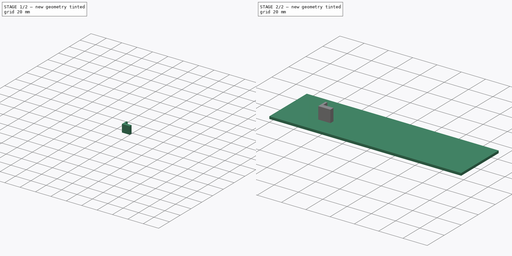
[diagram: build sequence overview — one tinted view per stage of 2, left to right]
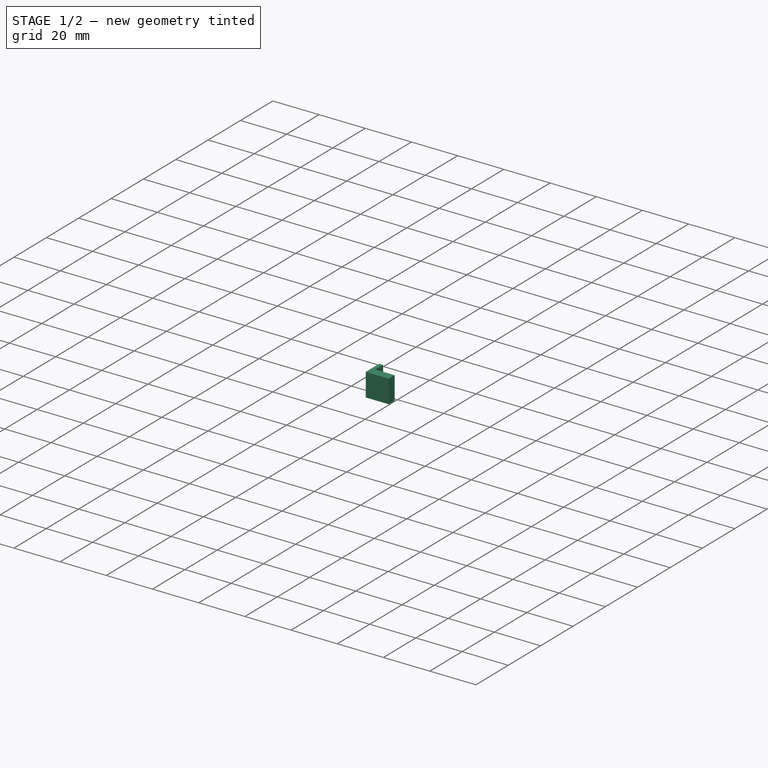
[diagram: stage 1 of 2 — iso view after this stage's code; geometry added in this stage tinted green]
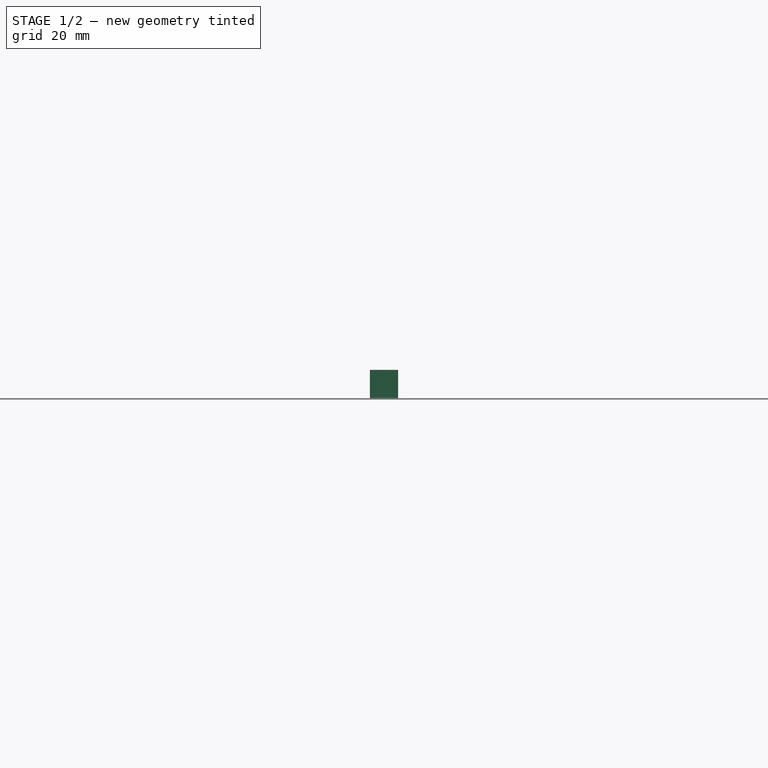
[diagram: stage 1 of 2 — front view after this stage's code; geometry added in this stage tinted green]
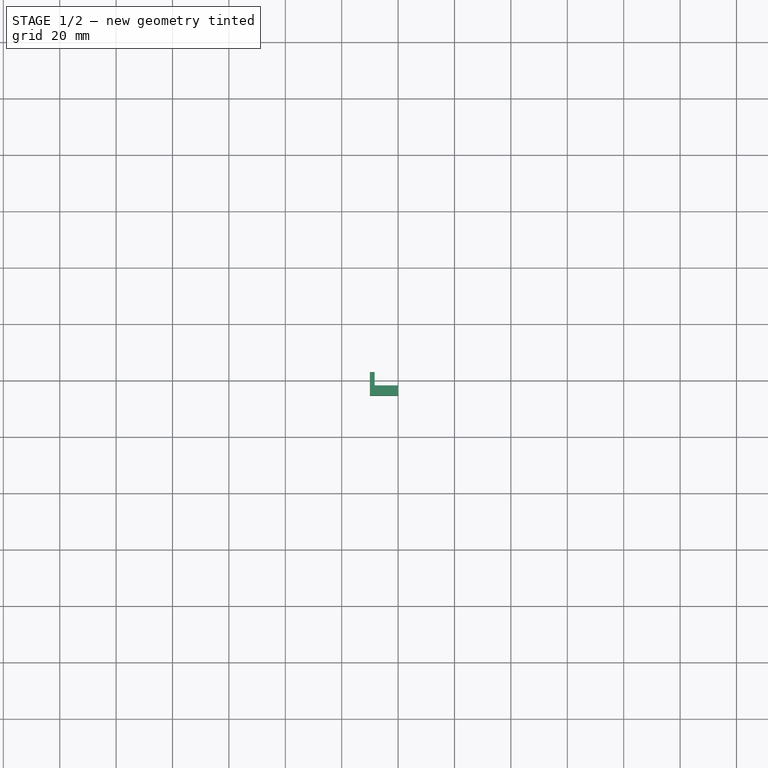
[diagram: stage 1 of 2 — top view after this stage's code; geometry added in this stage tinted green]
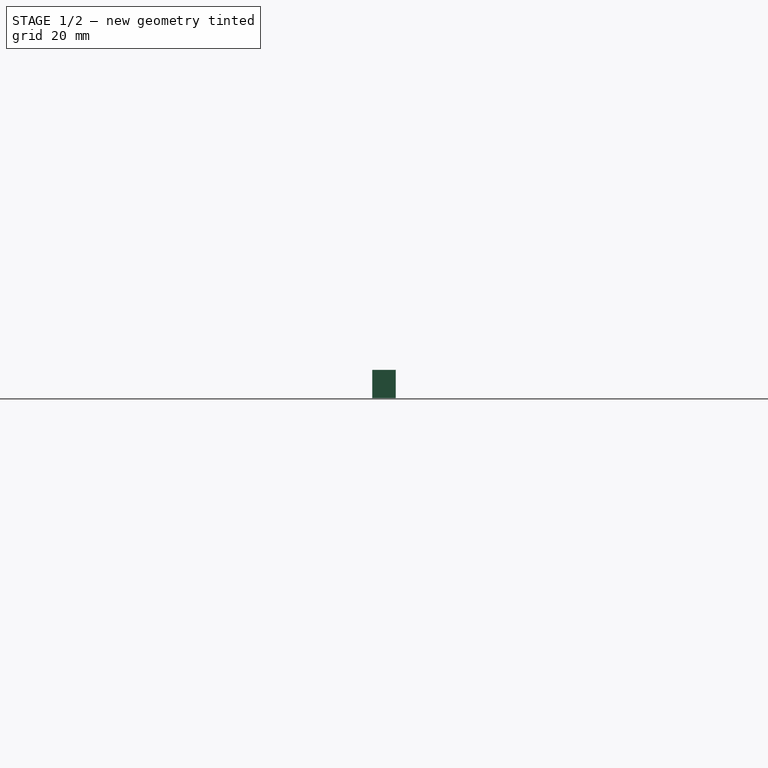
[diagram: stage 1 of 2 — right view after this stage's code; geometry added in this stage tinted green]
FCSTD DOCUMENT  (FreeCAD 0.21R33771 (Git))
Label: design attempt 1
License: All rights reserved
LicenseURL: https://en.wikipedia.org/wiki/All_rights_reserved
objects: Sketcher::SketchObject×4, Part::Extrusion×2, PartDesign::Pad×1, PartDesign::Body×1
note: 9 computed .brp shape members not serialized (recipe doc carries the construction recipe); baked Part::Feature solids carry a one-line shape summary decoded from their .brp

FEATURE [Sketcher::SketchObject] Sketch005
  FullyConstrained = false
  MapMode = 5
  Support = -> [XY_Plane]
  sketch-geometry (4):
    g0: LineSegment StartX=30 StartY=18.2585 StartZ=0 EndX=40 EndY=18.2585 EndZ=0
    g1: LineSegment StartX=40 StartY=18.2585 StartZ=0 EndX=40 EndY=14.6585 EndZ=0
    g2: LineSegment StartX=40 StartY=14.6585 StartZ=0 EndX=30 EndY=14.6585 EndZ=0
    g3: LineSegment StartX=30 StartY=14.6585 StartZ=0 EndX=30 EndY=18.2585 EndZ=0
  constraints (9):
    c: Coincident(g0,g1)
    c: Coincident(g1,g2)
    c: Coincident(g2,g3)
    c: Coincident(g3,g0)
    c: Horizontal(g0)
    c: Horizontal(g2)
    c: Vertical(g1)
    c: Vertical(g3)
    c: DistanceY(g1,g1) = 3.6
FEATURE [Sketcher::SketchObject] Sketch006
  FullyConstrained = false
  MapMode = 5
  Support = -> [XY_Plane]
  sketch-geometry (4):
    g0: LineSegment StartX=29.9958 StartY=23.0042 StartZ=0 EndX=31.6758 EndY=23.0042 EndZ=0
    g1: LineSegment StartX=31.6758 StartY=23.0042 StartZ=0 EndX=31.6758 EndY=18.2642 EndZ=0
    g2: LineSegment StartX=31.6758 StartY=18.2642 StartZ=0 EndX=29.9958 EndY=18.2642 EndZ=0
    g3: LineSegment StartX=29.9958 StartY=18.2642 StartZ=0 EndX=29.9958 EndY=23.0042 EndZ=0
  constraints (10):
    c: Coincident(g0,g1)
    c: Coincident(g1,g2)
    c: Coincident(g2,g3)
    c: Coincident(g3,g0)
    c: Horizontal(g0)
    c: Horizontal(g2)
    c: Vertical(g1)
    c: Vertical(g3)
    c: DistanceY(g1,g1) = 4.74
    c: DistanceX(g0,g0) = 1.68
FEATURE [PartDesign::Body] Body
  Group = -> [Sketch,Sketch004,Pad,Sketch005,Sketch006]
  Origin = -> Origin
  Tip = -> Pad
FEATURE [Part::Extrusion] Extrude
  Base = -> Sketch005
  Dir = (0,0,1)
  DirMode = 2
  FaceMakerClass = Part::FaceMakerBullseye
  LengthFwd = 10
  LengthRev = 0
  Solid = true
  Symmetric = false
FEATURE [Part::Extrusion] Extrude001
  Base = -> Sketch006
  Dir = (0,0,1)
  DirMode = 2
  FaceMakerClass = Part::FaceMakerBullseye
  LengthFwd = 10
  LengthRev = 0
  Solid = true
  Symmetric = false
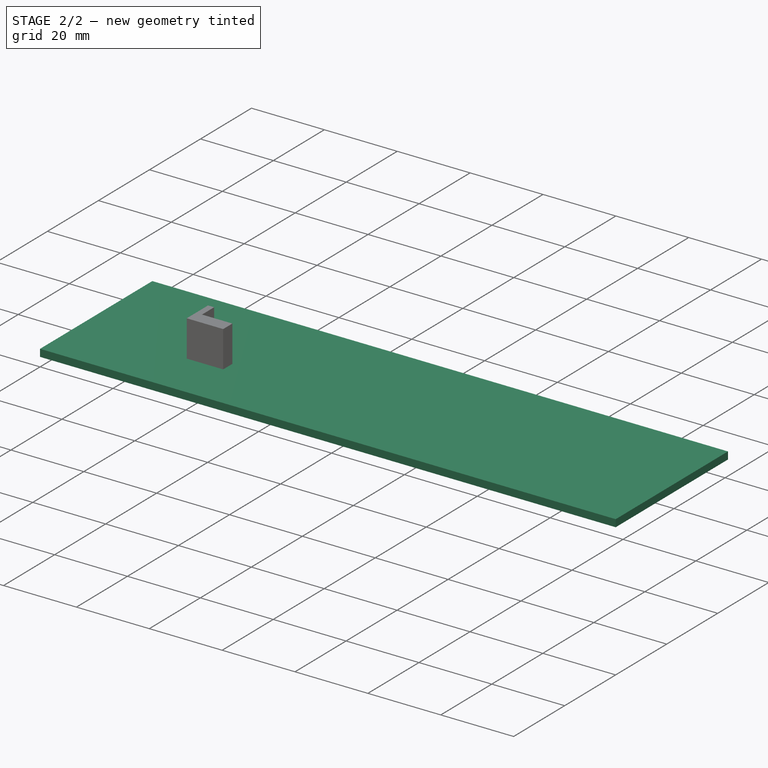
[diagram: stage 2 of 2 — iso view after this stage's code; geometry added in this stage tinted green]
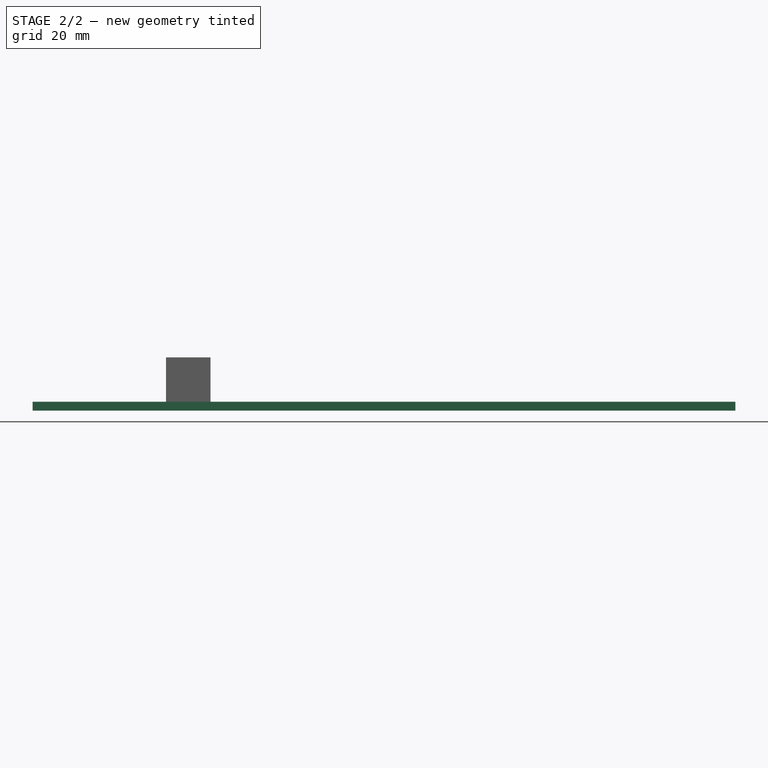
[diagram: stage 2 of 2 — front view after this stage's code; geometry added in this stage tinted green]
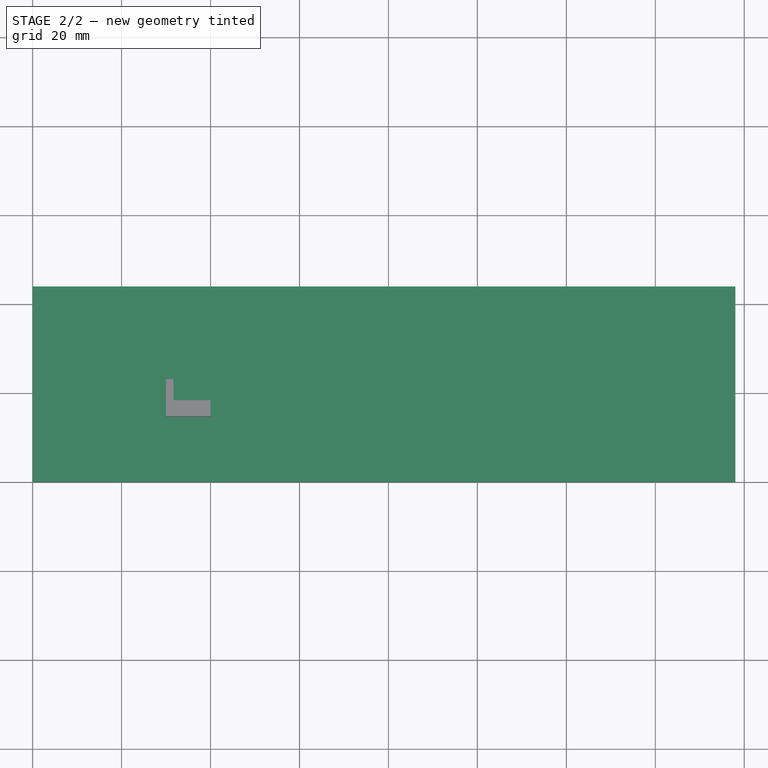
[diagram: stage 2 of 2 — top view after this stage's code; geometry added in this stage tinted green]
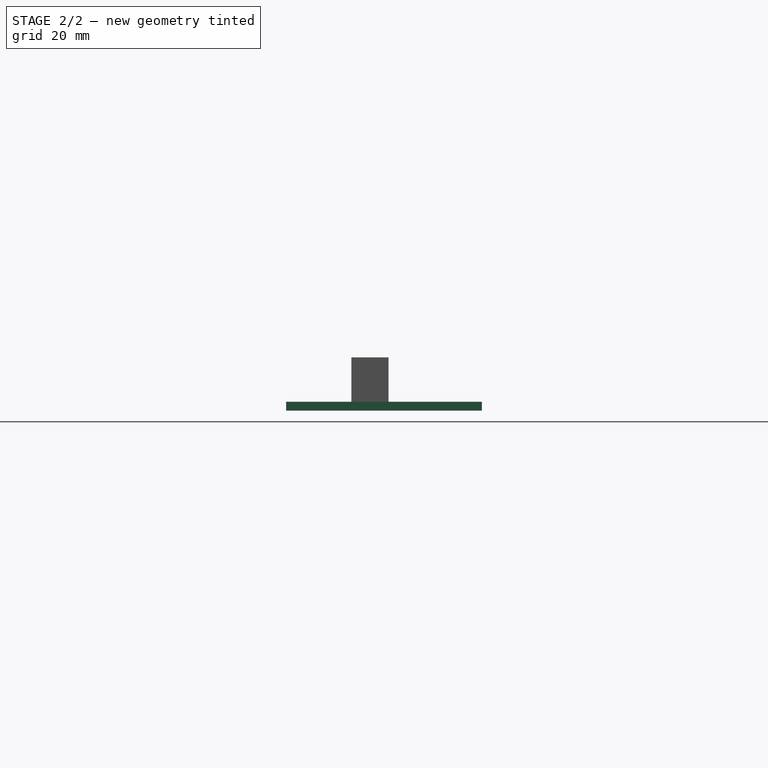
[diagram: stage 2 of 2 — right view after this stage's code; geometry added in this stage tinted green]
FEATURE [Sketcher::SketchObject] Sketch
  FullyConstrained = false
  MapMode = 5
  Support = -> [XY_Plane]
  sketch-geometry (116):
    g0: LineSegment StartX=0 StartY=44 StartZ=0 EndX=20 EndY=44 EndZ=0
    g1: LineSegment StartX=20 StartY=44 StartZ=0 EndX=20 EndY=42 EndZ=0
    g2: LineSegment StartX=20 StartY=42 StartZ=0 EndX=0 EndY=42 EndZ=0
    g3: LineSegment StartX=0 StartY=42 StartZ=0 EndX=0 EndY=44 EndZ=0
    g4: LineSegment StartX=158 StartY=0 StartZ=0 EndX=138 EndY=0 EndZ=0
    g5: LineSegment StartX=138 StartY=0 StartZ=0 EndX=138 EndY=2 EndZ=0
    g6: LineSegment StartX=138 StartY=2 StartZ=0 EndX=158 EndY=2 EndZ=0
    g7: LineSegment StartX=158 StartY=2 StartZ=0 EndX=158 EndY=0 EndZ=0
    g8: LineSegment StartX=158 StartY=44 StartZ=0 EndX=138 EndY=44 EndZ=0
    g9: LineSegment StartX=138 StartY=44 StartZ=0 EndX=138 EndY=42 EndZ=0
    g10: LineSegment StartX=138 StartY=42 StartZ=0 EndX=158 EndY=42 EndZ=0
    g11: LineSegment StartX=158 StartY=42 StartZ=0 EndX=158 EndY=44 EndZ=0
    g12: LineSegment StartX=1 StartY=2 StartZ=0 EndX=1 EndY=6.3 EndZ=0
    g13: LineSegment StartX=1 StartY=6.3 StartZ=0 EndX=2 EndY=6.3 EndZ=0
    g14: LineSegment StartX=2 StartY=6.3 StartZ=0 EndX=2 EndY=2 EndZ=0
    g15: LineSegment StartX=20 StartY=23.0023 StartZ=0 EndX=0 EndY=23.0023 EndZ=0
    g16: LineSegment StartX=0 StartY=23.0023 StartZ=0 EndX=0 EndY=21.0023 EndZ=0
    g17: LineSegment StartX=0 StartY=21.0023 StartZ=0 EndX=20 EndY=21.0023 EndZ=0
    g18: LineSegment StartX=20 StartY=21.0023 StartZ=0 EndX=20 EndY=23.0023 EndZ=0
    g19: LineSegment StartX=2 StartY=21 StartZ=0 EndX=1 EndY=21 EndZ=0
    g20: LineSegment StartX=1 StartY=21 StartZ=0 EndX=1 EndY=16.7 EndZ=0
    g21: LineSegment StartX=1 StartY=16.7 StartZ=0 EndX=2 EndY=16.7 EndZ=0
    g22: LineSegment StartX=2 StartY=16.7 StartZ=0 EndX=2 EndY=21 EndZ=0
    g23: LineSegment StartX=75.5 StartY=2 StartZ=0 EndX=76.5 EndY=2 EndZ=0
    g24: LineSegment StartX=76.5 StartY=2 StartZ=0 EndX=76.5 EndY=6.3 EndZ=0
    g25: LineSegment StartX=76.5 StartY=6.3 StartZ=0 EndX=75.5 EndY=6.3 EndZ=0
    g26: LineSegment StartX=75.5 StartY=6.3 StartZ=0 EndX=75.5 EndY=2 EndZ=0
    g27: LineSegment StartX=77.4989 StartY=0 StartZ=0 EndX=79.4989 EndY=0 EndZ=0
    g28: LineSegment StartX=79.4989 StartY=0 StartZ=0 EndX=79.4989 EndY=44 EndZ=0
    g29: LineSegment StartX=79.4989 StartY=44 StartZ=0 EndX=77.4989 EndY=44 EndZ=0
    g30: LineSegment StartX=77.4989 StartY=44 StartZ=0 EndX=77.4989 EndY=0 EndZ=0
    g31: LineSegment StartX=77.4989 StartY=0 StartZ=0 EndX=57.4989 EndY=0 EndZ=0
    g32: LineSegment StartX=57.4989 StartY=0 StartZ=0 EndX=57.4989 EndY=2 EndZ=0
    g33: LineSegment StartX=57.4989 StartY=2 StartZ=0 EndX=77.4989 EndY=2 EndZ=0
    g34: LineSegment StartX=77.4989 StartY=2 StartZ=0 EndX=77.4989 EndY=0 EndZ=0
    g35: LineSegment StartX=75.5 StartY=21 StartZ=0 EndX=76.5 EndY=21 EndZ=0
    g36: LineSegment StartX=76.5 StartY=21 StartZ=0 EndX=76.5 EndY=16.7 EndZ=0
    g37: LineSegment StartX=76.5 StartY=16.7 StartZ=0 EndX=75.5 EndY=16.7 EndZ=0
    g38: LineSegment StartX=75.5 StartY=16.7 StartZ=0 EndX=75.5 EndY=21 EndZ=0
    g39: LineSegment StartX=57.5012 StartY=23 StartZ=0 EndX=77.5012 EndY=23 EndZ=0
    g40: LineSegment StartX=77.5012 StartY=23 StartZ=0 EndX=77.5012 EndY=21 EndZ=0
    g41: LineSegment StartX=77.5012 StartY=21 StartZ=0 EndX=57.5012 EndY=21 EndZ=0
    g42: LineSegment StartX=57.5012 StartY=21 StartZ=0 EndX=57.5012 EndY=23 EndZ=0
    g43: LineSegment StartX=1 StartY=23.0023 StartZ=0 EndX=2 EndY=23.0023 EndZ=0
    g44: LineSegment StartX=2 StartY=23.0023 StartZ=0 EndX=2 EndY=27.3023 EndZ=0
    g45: LineSegment StartX=2 StartY=27.3023 StartZ=0 EndX=1 EndY=27.3023 EndZ=0
    g46: LineSegment StartX=1 StartY=27.3023 StartZ=0 EndX=1 EndY=23.0023 EndZ=0
    g47: LineSegment StartX=1 StartY=41.9976 StartZ=0 EndX=2 EndY=41.9976 EndZ=0
    g48: LineSegment StartX=2 StartY=41.9976 StartZ=0 EndX=2 EndY=37.6976 EndZ=0
    g49: LineSegment StartX=2 StartY=37.6976 StartZ=0 EndX=1 EndY=37.6976 EndZ=0
    g50: LineSegment StartX=1 StartY=37.6976 StartZ=0 EndX=1 EndY=41.9976 EndZ=0
    g51: LineSegment StartX=57.5 StartY=44 StartZ=0 EndX=77.5 EndY=44 EndZ=0
    g52: LineSegment StartX=77.5 StartY=44 StartZ=0 EndX=77.5 EndY=42 EndZ=0
    g53: LineSegment StartX=77.5 StartY=42 StartZ=0 EndX=57.5 EndY=42 EndZ=0
    g54: LineSegment StartX=57.5 StartY=42 StartZ=0 EndX=57.5 EndY=44 EndZ=0
    g55: LineSegment StartX=75.5001 StartY=23 StartZ=0 EndX=76.5001 EndY=23 EndZ=0
    g56: LineSegment StartX=76.5001 StartY=23 StartZ=0 EndX=76.5001 EndY=27.3 EndZ=0
    g57: LineSegment StartX=76.5001 StartY=27.3 StartZ=0 EndX=75.5001 EndY=27.3 EndZ=0
    g58: LineSegment StartX=75.5001 StartY=27.3 StartZ=0 EndX=75.5001 EndY=23 EndZ=0
    g59: LineSegment StartX=76.5643 StartY=42 StartZ=0 EndX=75.5643 EndY=42 EndZ=0
    g60: LineSegment StartX=75.5643 StartY=42 StartZ=0 EndX=75.5643 EndY=37.7 EndZ=0
    g61: LineSegment StartX=75.5643 StartY=37.7 StartZ=0 EndX=76.5643 EndY=37.7 EndZ=0
    g62: LineSegment StartX=76.5643 StartY=37.7 StartZ=0 EndX=76.5643 EndY=42 EndZ=0
    g63: LineSegment StartX=79.4989 StartY=0 StartZ=0 EndX=99.4989 EndY=0 EndZ=0
    g64: LineSegment StartX=99.4989 StartY=0 StartZ=0 EndX=99.4989 EndY=2 EndZ=0
    g65: LineSegment StartX=99.4989 StartY=2 StartZ=0 EndX=79.4989 EndY=2 EndZ=0
    g66: LineSegment StartX=79.4989 StartY=2 StartZ=0 EndX=79.4989 EndY=0 EndZ=0
    g67: LineSegment StartX=79.4989 StartY=44 StartZ=0 EndX=99.4989 EndY=44 EndZ=0
    g68: LineSegment StartX=99.4989 StartY=44 StartZ=0 EndX=99.4989 EndY=42 EndZ=0
    g69: LineSegment StartX=99.4989 StartY=42 StartZ=0 EndX=79.4989 EndY=42 EndZ=0
    g70: LineSegment StartX=79.4989 StartY=42 StartZ=0 EndX=79.4989 EndY=44 EndZ=0
    g71: LineSegment StartX=79.4989 StartY=23 StartZ=0 EndX=99.4989 EndY=23 EndZ=0
    g72: LineSegment StartX=99.4989 StartY=23 StartZ=0 EndX=99.4989 EndY=21 EndZ=0
    g73: LineSegment StartX=99.4989 StartY=21 StartZ=0 EndX=79.4989 EndY=21 EndZ=0
    g74: LineSegment StartX=79.4989 StartY=21 StartZ=0 EndX=79.4989 EndY=23 EndZ=0
    g75: LineSegment StartX=138 StartY=23 StartZ=0 EndX=158 EndY=23 EndZ=0
    g76: LineSegment StartX=158 StartY=23 StartZ=0 EndX=158 EndY=21 EndZ=0
    g77: LineSegment StartX=158 StartY=21 StartZ=0 EndX=138 EndY=21 EndZ=0
    g78: LineSegment StartX=138 StartY=21 StartZ=0 EndX=138 EndY=23 EndZ=0
    g79: LineSegment StartX=80.5038 StartY=2 StartZ=0 EndX=81.5038 EndY=2 EndZ=0
    g80: LineSegment StartX=81.5038 StartY=2 StartZ=0 EndX=81.5038 EndY=6.3 EndZ=0
    g81: LineSegment StartX=81.5038 StartY=6.3 StartZ=0 EndX=80.5038 EndY=6.3 EndZ=0
    g82: LineSegment StartX=80.5038 StartY=6.3 StartZ=0 EndX=80.5038 EndY=2 EndZ=0
    g83: LineSegment StartX=80.5 StartY=21 StartZ=0 EndX=81.5 EndY=21 EndZ=0
    g84: LineSegment StartX=81.5 StartY=21 StartZ=0 EndX=81.5 EndY=16.7 EndZ=0
    g85: LineSegment StartX=81.5 StartY=16.7 StartZ=0 EndX=80.5 EndY=16.7 EndZ=0
    g86: LineSegment StartX=80.5 StartY=16.7 StartZ=0 EndX=80.5 EndY=21 EndZ=0
    g87: LineSegment StartX=81.5 StartY=23 StartZ=0 EndX=80.5 EndY=23 EndZ=0
    g88: LineSegment StartX=80.5 StartY=23 StartZ=0 EndX=80.5 EndY=27.3 EndZ=0
    g89: LineSegment StartX=80.5 StartY=27.3 StartZ=0 EndX=81.5 EndY=27.3 EndZ=0
    g90: LineSegment StartX=81.5 StartY=27.3 StartZ=0 EndX=81.5 EndY=23 EndZ=0
    g91: LineSegment StartX=157 StartY=2 StartZ=0 EndX=156 EndY=2 EndZ=0
    g92: LineSegment StartX=156 StartY=2 StartZ=0 EndX=156 EndY=6.3 EndZ=0
    g93: LineSegment StartX=156 StartY=6.3 StartZ=0 EndX=157 EndY=6.3 EndZ=0
    g94: LineSegment StartX=157 StartY=6.3 StartZ=0 EndX=157 EndY=2 EndZ=0
    g95: LineSegment StartX=157 StartY=21 StartZ=0 EndX=156 EndY=21 EndZ=0
    g96: LineSegment StartX=156 StartY=21 StartZ=0 EndX=156 EndY=16.7 EndZ=0
    g97: LineSegment StartX=156 StartY=16.7 StartZ=0 EndX=157 EndY=16.7 EndZ=0
    g98: LineSegment StartX=157 StartY=16.7 StartZ=0 EndX=157 EndY=21 EndZ=0
    g99: LineSegment StartX=157 StartY=23 StartZ=0 EndX=156 EndY=23 EndZ=0
    g100: LineSegment StartX=156 StartY=23 StartZ=0 EndX=156 EndY=27.3 EndZ=0
    g101: LineSegment StartX=156 StartY=27.3 StartZ=0 EndX=157 EndY=27.3 EndZ=0
    g102: LineSegment StartX=157 StartY=27.3 StartZ=0 EndX=157 EndY=23 EndZ=0
    g103: LineSegment StartX=157 StartY=42 StartZ=0 EndX=156 EndY=42 EndZ=0
    g104: LineSegment StartX=156 StartY=42 StartZ=0 EndX=156 EndY=37.7 EndZ=0
    g105: LineSegment StartX=156 StartY=37.7 StartZ=0 EndX=157 EndY=37.7 EndZ=0
    g106: LineSegment StartX=157 StartY=37.7 StartZ=0 EndX=157 EndY=42 EndZ=0
    g107: LineSegment StartX=80.4971 StartY=42 StartZ=0 EndX=81.4971 EndY=42 EndZ=0
    g108: LineSegment StartX=81.4971 StartY=42 StartZ=0 EndX=81.4971 EndY=37.7 EndZ=0
    g109: LineSegment StartX=81.4971 StartY=37.7 StartZ=0 EndX=80.4971 EndY=37.7 EndZ=0
    g110: LineSegment StartX=80.4971 StartY=37.7 StartZ=0 EndX=80.4971 EndY=42 EndZ=0
    g111: LineSegment StartX=0 StartY=0 StartZ=0 EndX=0 EndY=2 EndZ=0
    g112: LineSegment StartX=0 StartY=2 StartZ=0 EndX=1 EndY=2 EndZ=0
    g113: LineSegment StartX=2 StartY=2 StartZ=0 EndX=20 EndY=2 EndZ=0
    g114: LineSegment StartX=20 StartY=2 StartZ=0 EndX=20 EndY=0 EndZ=0
    g115: LineSegment StartX=20 StartY=0 StartZ=0 EndX=0 EndY=0 EndZ=0
  constraints (302):
    c: DistanceX(g0,g8) = 158  'Base length'
    c: DistanceY(g-1,g0) = 44  'Base Width'
    c: Coincident(g0,g1)
    c: Coincident(g1,g2)
    c: Coincident(g2,g3)
    c: Coincident(g3,g0)
    c: Horizontal(g0)
    c: Horizontal(g2)
    c: Vertical(g1)
    c: Vertical(g3)
    c: Coincident(g4,g5)
    c: Coincident(g5,g6)
    c: Coincident(g6,g7)
    c: Coincident(g7,g4)
    c: Horizontal(g4)
    c: Horizontal(g6)
    c: Vertical(g5)
    c: Vertical(g7)
    c: Coincident(g8,g9)
    c: Coincident(g9,g10)
    c: Coincident(g10,g11)
    c: Coincident(g11,g8)
    c: Horizontal(g8)
    c: Horizontal(g10)
    c: Vertical(g9)
    c: Vertical(g11)
    c: DistanceX(g10,g10) = 20
    c: DistanceY(g9,g9) = 2
    c: DistanceY(g5,g5) = 2
    c: DistanceX(g6,g6) = 20
    c: DistanceX(g2,g2) = 20
    c: DistanceY(g1,g1) = 2
    c: Coincident(g12,g13)
    c: Coincident(g13,g14)
    c: Horizontal(g13)
    c: Vertical(g12)
    c: Vertical(g14)
    c: DistanceY(g12,g12) = 4.3
    c: DistanceX(g13,g13) = 1
    c: Coincident(g15,g16)
    c: Coincident(g16,g17)
    c: Coincident(g17,g18)
    c: Coincident(g18,g15)
    c: Horizontal(g15)
    c: Horizontal(g17)
    c: Vertical(g16)
    c: Vertical(g18)
    c: DistanceX(g15,g15) = 20
    c: DistanceY(g18,g18) = 2
    c: Coincident(g19,g20)
    c: Coincident(g20,g21)
    c: Coincident(g21,g22)
    c: Coincident(g22,g19)
    c: Horizontal(g19)
    c: Horizontal(g21)
    c: Vertical(g20)
    c: Vertical(g22)
    c: DistanceY(g20,g20) = 4.3
    c: DistanceX(g21,g21) = 1
    c: Coincident(g23,g24)
    c: Coincident(g24,g25)
    c: Coincident(g25,g26)
    c: Coincident(g26,g23)
    c: Horizontal(g23)
    c: Horizontal(g25)
    c: Vertical(g24)
    c: Vertical(g26)
    c: DistanceY(g24,g24) = 4.3
    c: DistanceX(g23,g23) = 1
    c: Coincident(g27,g28)
    c: Coincident(g28,g29)
    c: Coincident(g29,g30)
    c: Coincident(g30,g27)
    c: Horizontal(g27)
    c: Horizontal(g29)
    c: Vertical(g28)
    c: Vertical(g30)
    c: DistanceY(g30,g30) = 44
    c: DistanceX(g27,g27) = 2
    c: Coincident(g31,g32)
    c: Coincident(g32,g33)
    c: Coincident(g33,g34)
    c: Coincident(g34,g31)
    c: Horizontal(g31)
    c: Horizontal(g33)
    c: Vertical(g32)
    c: Vertical(g34)
    c: Coincident(g31,g27)
    c: DistanceX(g33,g33) = 20
    c: DistanceY(g32,g32) = 2
    c: Coincident(g35,g36)
    c: Coincident(g36,g37)
    c: Coincident(g37,g38)
    c: Coincident(g38,g35)
    c: Horizontal(g35)
    c: Horizontal(g37)
    c: Vertical(g36)
    c: Vertical(g38)
    c: DistanceY(g36,g36) = 4.3
    c: DistanceX(g37,g37) = 1
    c: Coincident(g39,g40)
    c: Coincident(g40,g41)
    c: Coincident(g41,g42)
    c: Coincident(g42,g39)
    c: Horizontal(g39)
    c: Horizontal(g41)
    c: Vertical(g40)
    c: Vertical(g42)
    c: DistanceY(g42,g42) = 2
    c: DistanceX(g39,g39) = 20
    c: Coincident(g43,g44)
    c: Coincident(g44,g45)
    c: Coincident(g45,g46)
    c: Coincident(g46,g43)
    c: Horizontal(g43)
    c: Horizontal(g45)
    c: Vertical(g44)
    c: Vertical(g46)
    c: PointOnObject(g43,g15)
    c: DistanceY(g44,g44) = 4.3
    c: DistanceX(g45,g45) = 1
    c: Coincident(g47,g48)
    c: Coincident(g48,g49)
    c: Coincident(g49,g50)
    c: Coincident(g50,g47)
    c: Horizontal(g47)
    c: Horizontal(g49)
    c: Vertical(g48)
    c: Vertical(g50)
    c: DistanceX(g49,g49) = 1
    c: DistanceY(g48,g48) = 4.3
    c: Coincident(g51,g52)
    c: Coincident(g52,g53)
    c: Coincident(g53,g54)
    c: Coincident(g54,g51)
    c: Horizontal(g51)
    c: Horizontal(g53)
    c: Vertical(g52)
    c: Vertical(g54)
    c: DistanceX(g51,g51) = 20
    c: DistanceY(g52,g52) = 2
    c: Coincident(g55,g56)
    c: Coincident(g56,g57)
    c: Coincident(g57,g58)
    c: Coincident(g58,g55)
    c: Horizontal(g55)
    c: Horizontal(g57)
    c: Vertical(g56)
    c: Vertical(g58)
    c: DistanceY(g56,g56) = 4.3
    c: DistanceX(g57,g57) = 1
    c: Coincident(g59,g60)
    c: Coincident(g60,g61)
    c: Coincident(g61,g62)
    c: Coincident(g62,g59)
    c: Horizontal(g59)
    c: Horizontal(g61)
    c: Vertical(g60)
    c: Vertical(g62)
    c: PointOnObject(g59,g53)
    c: DistanceX(g61,g61) = 1
    c: DistanceY(g60,g60) = 4.3
    c: Coincident(g63,g64)
    c: Coincident(g64,g65)
    c: Coincident(g65,g66)
    c: Coincident(g66,g63)
    c: Horizontal(g63)
    c: Horizontal(g65)
    c: Vertical(g64)
    c: Vertical(g66)
    c: Coincident(g63,g27)
    c: DistanceX(g65,g65) = 20
    c: DistanceY(g64,g64) = 2
    c: Coincident(g67,g68)
    c: Coincident(g68,g69)
    c: Coincident(g69,g70)
    c: Coincident(g70,g67)
    c: Horizontal(g67)
    c: Horizontal(g69)
    c: Vertical(g68)
    c: Vertical(g70)
    c: Coincident(g67,g28)
    c: DistanceX(g69,g69) = 20
    c: DistanceY(g68,g68) = 2
    c: Coincident(g71,g72)
    c: Coincident(g72,g73)
    c: Coincident(g73,g74)
    c: Coincident(g74,g71)
    c: Horizontal(g71)
    c: Horizontal(g73)
    c: Vertical(g72)
    c: Vertical(g74)
    c: DistanceX(g71,g71) = 20
    c: DistanceY(g74,g74) = 2
    c: Coincident(g75,g76)
    c: Coincident(g76,g77)
    c: Coincident(g77,g78)
    c: Coincident(g78,g75)
    c: Horizontal(g75)
    c: Horizontal(g77)
    c: Vertical(g76)
    c: Vertical(g78)
    c: DistanceX(g75,g75) = 20
    c: DistanceY(g78,g78) = 2
    c: Coincident(g79,g80)
    c: Coincident(g80,g81)
    c: Coincident(g81,g82)
    c: Coincident(g82,g79)
    c: Horizontal(g79)
    c: Horizontal(g81)
    c: Vertical(g80)
    c: Vertical(g82)
    c: PointOnObject(g79,g65)
    c: DistanceX(g81,g81) = 1
    c: DistanceY(g80,g80) = 4.3
    c: Coincident(g83,g84)
    c: Coincident(g84,g85)
    c: Coincident(g85,g86)
    c: Coincident(g86,g83)
    c: Horizontal(g83)
    c: Horizontal(g85)
    c: Vertical(g84)
    c: Vertical(g86)
    c: PointOnObject(g83,g73)
    c: Coincident(g87,g88)
    c: Coincident(g88,g89)
    c: Coincident(g89,g90)
    c: Coincident(g90,g87)
    c: Horizontal(g87)
    c: Horizontal(g89)
    c: Vertical(g88)
    c: Vertical(g90)
    c: PointOnObject(g87,g71)
    c: DistanceY(g90,g90) = 4.3
    c: DistanceX(g89,g89) = 1
    c: DistanceX(g85,g85) = 1
    c: DistanceY(g84,g84) = 4.3
    c: Coincident(g91,g92)
    c: Coincident(g92,g93)
    c: Coincident(g93,g94)
    c: Coincident(g94,g91)
    c: Horizontal(g91)
    c: Horizontal(g93)
    c: Vertical(g92)
    c: Vertical(g94)
    c: PointOnObject(g91,g6)
    c: DistanceY(g92,g92) = 4.3
    c: DistanceX(g93,g93) = 1
    c: Coincident(g95,g96)
    c: Coincident(g96,g97)
    c: Coincident(g97,g98)
    c: Coincident(g98,g95)
    c: Horizontal(g95)
    c: Horizontal(g97)
    c: Vertical(g96)
    c: Vertical(g98)
    c: PointOnObject(g95,g77)
    c: DistanceX(g97,g97) = 1
    c: Coincident(g99,g100)
    c: Coincident(g100,g101)
    c: Coincident(g101,g102)
    c: Coincident(g102,g99)
    c: Horizontal(g99)
    c: Horizontal(g101)
    c: Vertical(g100)
    c: Vertical(g102)
    c: PointOnObject(g99,g75)
    c: Coincident(g103,g104)
    c: Coincident(g104,g105)
    c: Coincident(g105,g106)
    c: Coincident(g106,g103)
    c: Horizontal(g103)
    c: Horizontal(g105)
    c: Vertical(g104)
    c: Vertical(g106)
    c: PointOnObject(g103,g10)
    c: DistanceY(g104,g104) = 4.3
    c: DistanceX(g105,g105) = 1
    c: DistanceX(g101,g101) = 1
    c: DistanceY(g100,g100) = 4.3
    c: Coincident(g107,g108)
    c: Coincident(g108,g109)
    c: Coincident(g109,g110)
    c: Coincident(g110,g107)
    c: Horizontal(g107)
    c: Horizontal(g109)
    c: Vertical(g108)
    c: Vertical(g110)
    c: PointOnObject(g107,g69)
    c: DistanceX(g109,g109) = 1
    c: DistanceY(g110,g110) = 4.3
    c: Coincident(g-1,g111)
    c: PointOnObject(g111,g-2)
    c: Coincident(g111,g112)
    c: Horizontal(g112)
    c: Coincident(g14,g113)
    c: Horizontal(g113)
    c: Coincident(g113,g114)
    c: Vertical(g114)
    c: Coincident(g114,g115)
    c: PointOnObject(g115,g111)
    c: Horizontal(g115)
FEATURE [Sketcher::SketchObject] Sketch004
  FullyConstrained = true
  MapMode = 5
  Support = -> [XY_Plane]
  sketch-geometry (4):
    g0: LineSegment StartX=0 StartY=0 StartZ=0 EndX=158 EndY=0 EndZ=0
    g1: LineSegment StartX=158 StartY=0 StartZ=0 EndX=158 EndY=44 EndZ=0
    g2: LineSegment StartX=158 StartY=44 StartZ=0 EndX=0 EndY=44 EndZ=0
    g3: LineSegment StartX=0 StartY=44 StartZ=0 EndX=0 EndY=0 EndZ=0
  constraints (11):
    c: Coincident(g0,g1)
    c: Coincident(g1,g2)
    c: Coincident(g2,g3)
    c: Coincident(g3,g0)
    c: Horizontal(g0)
    c: Horizontal(g2)
    c: Vertical(g1)
    c: Vertical(g3)
    c: Coincident(g0,g-1)
    c: DistanceY(g1,g1) = 44
    c: DistanceX(g2,g2) = 158
FEATURE [PartDesign::Pad] Pad
  Direction = (0,0,1)
  Length = 2
  Length2 = 10
  Profile = -> Sketch004
  ReferenceAxis = -> Sketch004 [N_Axis]
  Reversed = true
  Type = 0
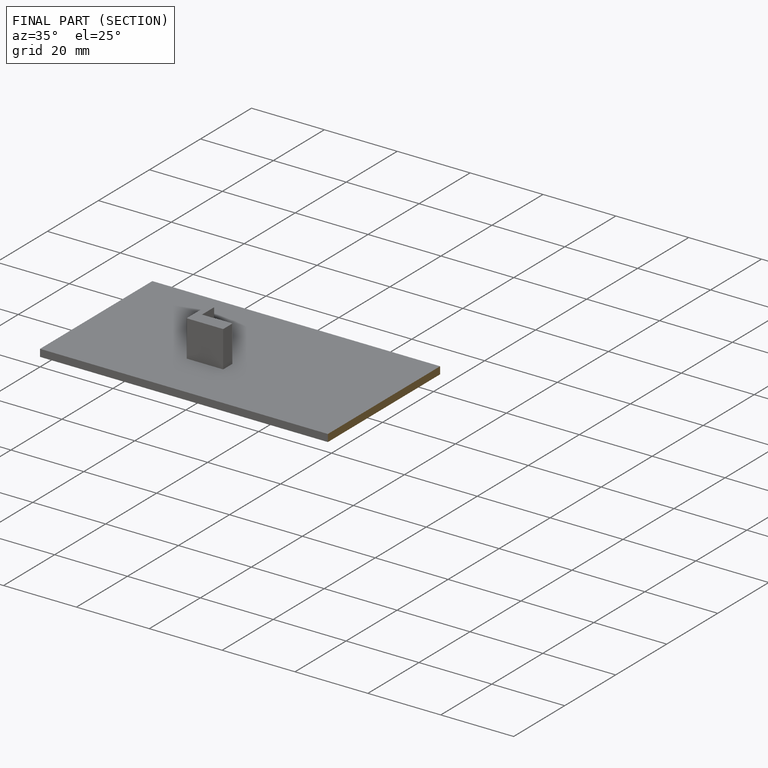
[diagram: finished part — half-section view (interior)]
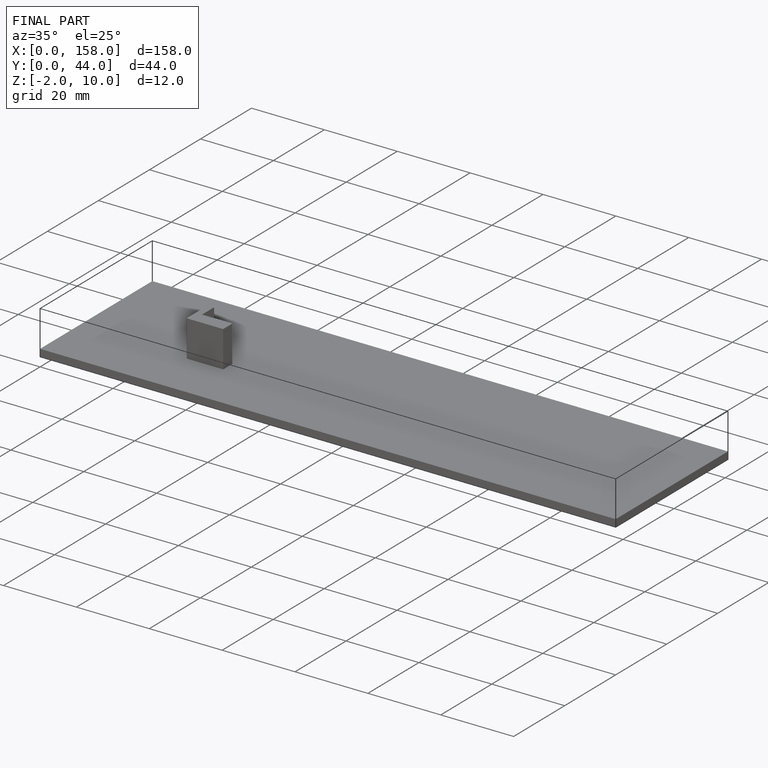
[diagram: finished part — iso view with bounding-box wireframe]
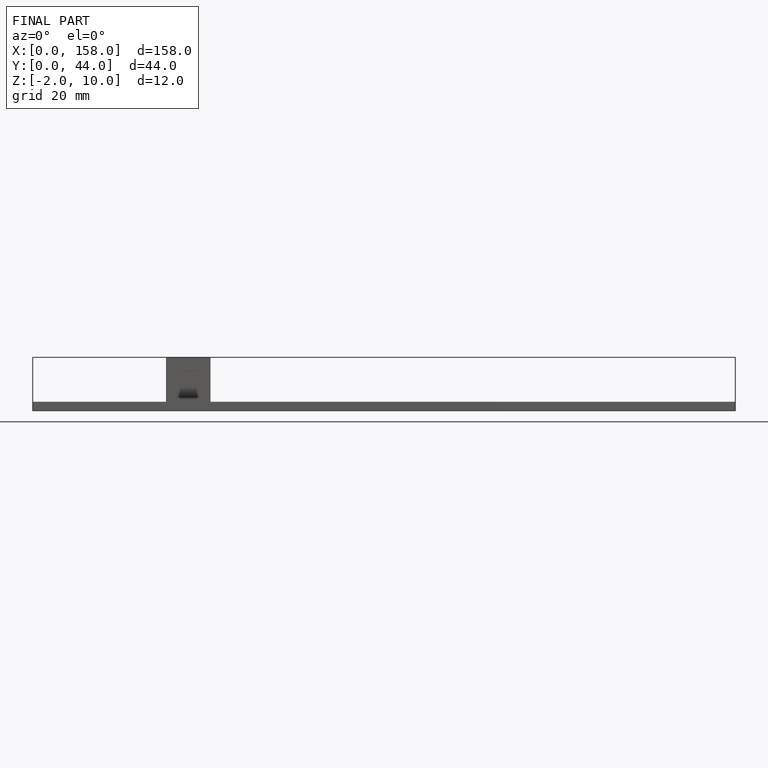
[diagram: finished part — front view with bounding-box wireframe]
